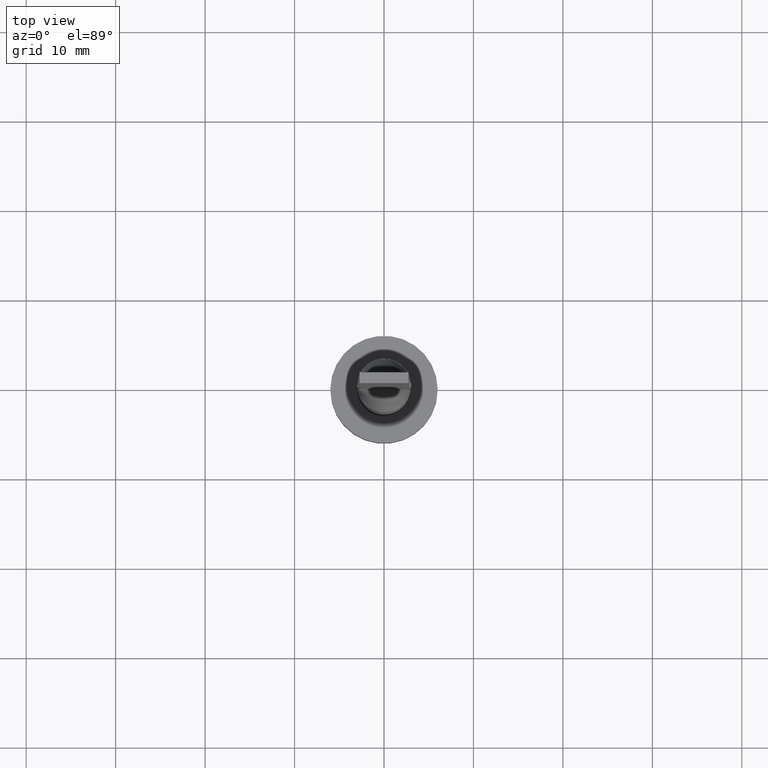
[diagram: clean part render]
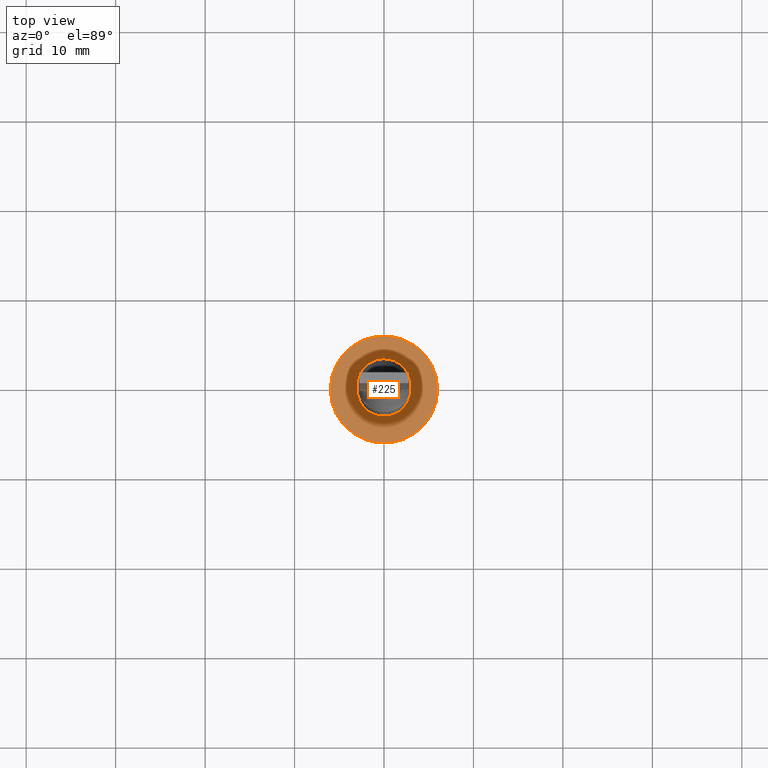
[diagram: same view with one face highlighted and labeled with its STEP entity id]
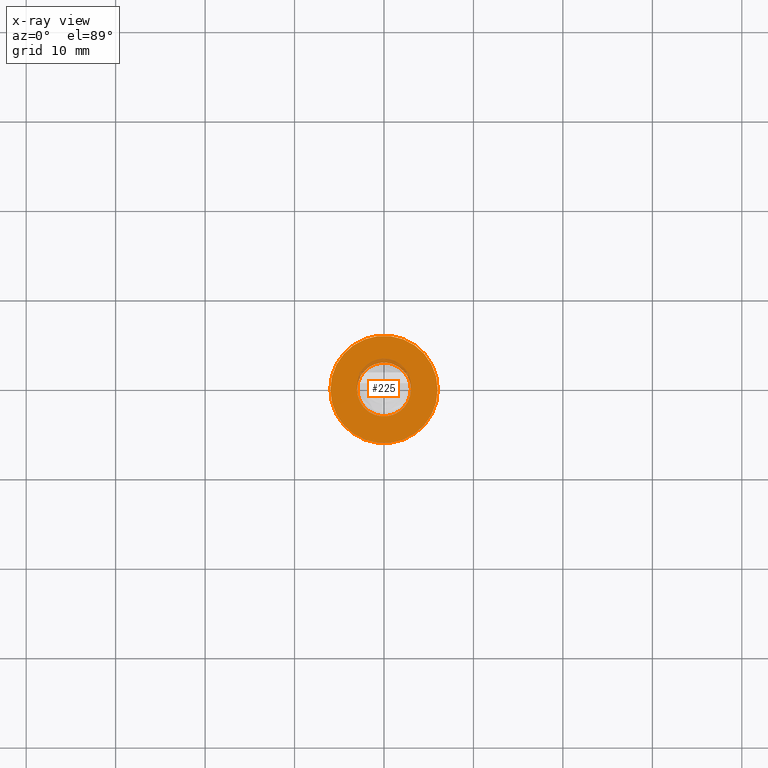
[diagram: x-ray of the same camera — body ghosted, the highlighted face saturated]
A machine part, top view. The second image highlights one B-rep face of the part: STEP entity #225.
The next image is the same camera in x-ray: the body ghosted, the highlighted face saturated — about 3% of this face is hidden behind the body in this view.
In plain terms, the highlighted planar face has unit normal (0, 0, 1).
Its self-contained STEP definition (entity closure, byte-faithful):
#2 = EDGE_CURVE ( 'NONE', #547, #362, #177, .T. ) ;
#7 = AXIS2_PLACEMENT_3D ( 'NONE', #405, #450, #363 ) ;
#18 = CARTESIAN_POINT ( 'NONE',  ( 0.000000000000000000, 0.000000000000000000, 5.000000000000000000 ) ) ;
#22 = AXIS2_PLACEMENT_3D ( 'NONE', #18, #52, #398 ) ;
#36 = EDGE_LOOP ( 'NONE', ( #337, #500 ) ) ;
#38 = PLANE ( 'NONE',  #7 ) ;
#52 = DIRECTION ( 'NONE',  ( 0.000000000000000000, 0.000000000000000000, 1.000000000000000000 ) ) ;
#60 = EDGE_CURVE ( 'NONE', #362, #547, #564, .T. ) ;
#67 = CARTESIAN_POINT ( 'NONE',  ( -6.000000000000000888, 0.000000000000000000, 5.000000000000000000 ) ) ;
#75 = FACE_OUTER_BOUND ( 'NONE', #78, .T. ) ;
#78 = EDGE_LOOP ( 'NONE', ( #260, #95 ) ) ;
#86 = VERTEX_POINT ( 'NONE', #484 ) ;
#95 = ORIENTED_EDGE ( 'NONE', *, *, #60, .T. ) ;
#138 = CARTESIAN_POINT ( 'NONE',  ( 0.000000000000000000, 0.000000000000000000, 5.000000000000000000 ) ) ;
#144 = DIRECTION ( 'NONE',  ( 1.000000000000000000, 0.000000000000000000, 0.000000000000000000 ) ) ;
#147 = CIRCLE ( 'NONE', #481, 3.000000000000000444 ) ;
#157 = CARTESIAN_POINT ( 'NONE',  ( 6.000000000000000888, 7.347880794884120722E-16, 5.000000000000000000 ) ) ;
#177 = CIRCLE ( 'NONE', #22, 6.000000000000000888 ) ;
#200 = CARTESIAN_POINT ( 'NONE',  ( 3.000000000000000444, 3.673940397442060361E-16, 5.000000000000000000 ) ) ;
#225 = ADVANCED_FACE ( 'NONE', ( #294, #75 ), #38, .T. ) ;
#260 = ORIENTED_EDGE ( 'NONE', *, *, #2, .T. ) ;
#265 = EDGE_CURVE ( 'NONE', #496, #86, #147, .T. ) ;
#274 = DIRECTION ( 'NONE',  ( 0.000000000000000000, 0.000000000000000000, 1.000000000000000000 ) ) ;
#294 = FACE_BOUND ( 'NONE', #36, .T. ) ;
#315 = CARTESIAN_POINT ( 'NONE',  ( 0.000000000000000000, 0.000000000000000000, 5.000000000000000000 ) ) ;
#320 = CARTESIAN_POINT ( 'NONE',  ( 0.000000000000000000, 0.000000000000000000, 5.000000000000000000 ) ) ;
#325 = AXIS2_PLACEMENT_3D ( 'NONE', #138, #550, #144 ) ;
#337 = ORIENTED_EDGE ( 'NONE', *, *, #485, .F. ) ;
#361 = DIRECTION ( 'NONE',  ( 0.000000000000000000, 0.000000000000000000, 1.000000000000000000 ) ) ;
#362 = VERTEX_POINT ( 'NONE', #157 ) ;
#363 = DIRECTION ( 'NONE',  ( 1.000000000000000000, 0.000000000000000000, -0.000000000000000000 ) ) ;
#398 = DIRECTION ( 'NONE',  ( 1.000000000000000000, 0.000000000000000000, 0.000000000000000000 ) ) ;
#405 = CARTESIAN_POINT ( 'NONE',  ( 0.000000000000000000, 0.000000000000000000, 5.000000000000000000 ) ) ;
#406 = DIRECTION ( 'NONE',  ( 1.000000000000000000, 0.000000000000000000, 0.000000000000000000 ) ) ;
#450 = DIRECTION ( 'NONE',  ( 0.000000000000000000, 0.000000000000000000, 1.000000000000000000 ) ) ;
#481 = AXIS2_PLACEMENT_3D ( 'NONE', #320, #361, #490 ) ;
#484 = CARTESIAN_POINT ( 'NONE',  ( -3.000000000000000444, 0.000000000000000000, 5.000000000000000000 ) ) ;
#485 = EDGE_CURVE ( 'NONE', #86, #496, #577, .T. ) ;
#490 = DIRECTION ( 'NONE',  ( 1.000000000000000000, 0.000000000000000000, 0.000000000000000000 ) ) ;
#496 = VERTEX_POINT ( 'NONE', #200 ) ;
#500 = ORIENTED_EDGE ( 'NONE', *, *, #265, .F. ) ;
#547 = VERTEX_POINT ( 'NONE', #67 ) ;
#548 = AXIS2_PLACEMENT_3D ( 'NONE', #315, #274, #406 ) ;
#550 = DIRECTION ( 'NONE',  ( 0.000000000000000000, 0.000000000000000000, 1.000000000000000000 ) ) ;
#564 = CIRCLE ( 'NONE', #325, 6.000000000000000888 ) ;
#577 = CIRCLE ( 'NONE', #548, 3.000000000000000444 ) ;